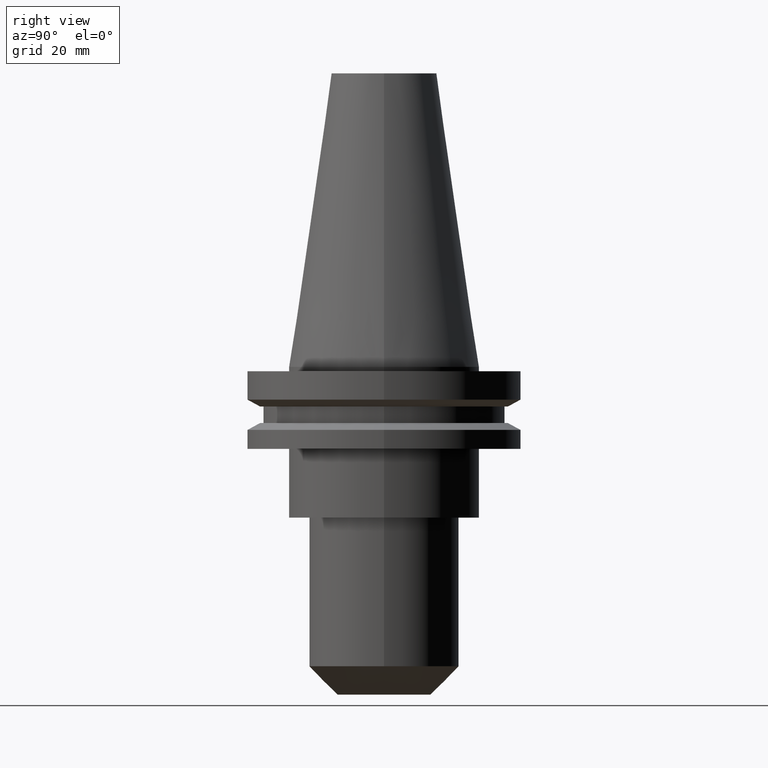
[diagram: clean part render]
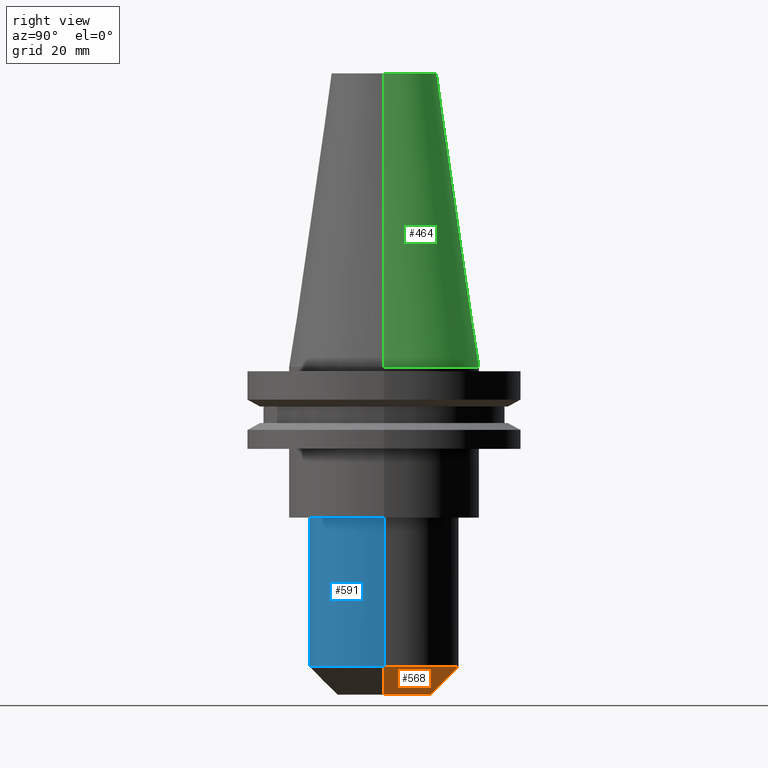
[diagram: same view with three faces highlighted in distinct colors, each labeled with its STEP entity id]
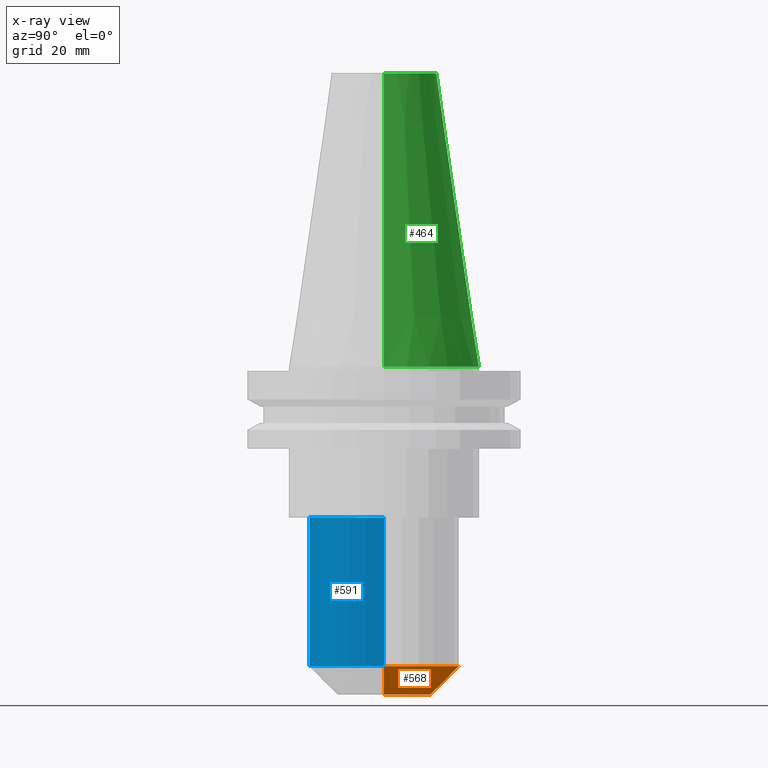
[diagram: x-ray of the same camera — body ghosted, the three highlighted faces saturated]
A machine part, right view with three faces highlighted in distinct colors.
The next image is the same camera in x-ray (body ghosted, the three faces saturated) — at least one of them is partly hidden behind the body in this view.
Their STEP definitions:

[orange] entity #568 — the highlighted conical surface has half-angle 45 deg.
#1 = CARTESIAN_POINT ( 'NONE',  ( 0.000000000000000000, 0.000000000000000000, -76.20000000000000284 ) ) ;
#21 = DIRECTION ( 'NONE',  ( 0.7071067811865487940, 0.000000000000000000, 0.7071067811865463515 ) ) ;
#85 = EDGE_CURVE ( 'NONE', #154, #462, #601, .T. ) ;
#115 = CARTESIAN_POINT ( 'NONE',  ( 0.000000000000000000, 0.000000000000000000, -69.60000000000000853 ) ) ;
#154 = VERTEX_POINT ( 'NONE', #635 ) ;
#171 = CARTESIAN_POINT ( 'NONE',  ( 10.86499999999998423, 0.000000000000000000, -76.20000000000000284 ) ) ;
#180 = DIRECTION ( 'NONE',  ( 1.000000000000000000, 0.000000000000000000, 0.000000000000000000 ) ) ;
#197 = DIRECTION ( 'NONE',  ( 1.000000000000000000, 0.000000000000000000, 0.000000000000000000 ) ) ;
#208 = EDGE_CURVE ( 'NONE', #363, #480, #746, .T. ) ;
#228 = ORIENTED_EDGE ( 'NONE', *, *, #292, .F. ) ;
#229 = AXIS2_PLACEMENT_3D ( 'NONE', #1, #267, #197 ) ;
#238 = DIRECTION ( 'NONE',  ( -0.000000000000000000, -0.000000000000000000, 1.000000000000000000 ) ) ;
#267 = DIRECTION ( 'NONE',  ( -0.000000000000000000, -0.000000000000000000, 1.000000000000000000 ) ) ;
#292 = EDGE_CURVE ( 'NONE', #480, #462, #384, .T. ) ;
#302 = ORIENTED_EDGE ( 'NONE', *, *, #85, .T. ) ;
#325 = EDGE_LOOP ( 'NONE', ( #803, #302, #228, #342 ) ) ;
#342 = ORIENTED_EDGE ( 'NONE', *, *, #208, .F. ) ;
#363 = VERTEX_POINT ( 'NONE', #171 ) ;
#384 = CIRCLE ( 'NONE', #612, 17.46499999999999986 ) ;
#461 = AXIS2_PLACEMENT_3D ( 'NONE', #584, #774, #180 ) ;
#462 = VERTEX_POINT ( 'NONE', #795 ) ;
#468 = FACE_OUTER_BOUND ( 'NONE', #325, .T. ) ;
#472 = VECTOR ( 'NONE', #793, 1000.000000000000000 ) ;
#480 = VERTEX_POINT ( 'NONE', #593 ) ;
#494 = CONICAL_SURFACE ( 'NONE', #229, 10.86499999999998423, 0.7853981633974500554 ) ;
#568 = ADVANCED_FACE ( 'NONE', ( #468 ), #494, .T. ) ;
#584 = CARTESIAN_POINT ( 'NONE',  ( 0.000000000000000000, 0.000000000000000000, -76.20000000000000284 ) ) ;
#593 = CARTESIAN_POINT ( 'NONE',  ( 17.46499999999999986, 0.000000000000000000, -69.60000000000000853 ) ) ;
#601 = LINE ( 'NONE', #606, #472 ) ;
#606 = CARTESIAN_POINT ( 'NONE',  ( -10.86499999999998423, 1.330578747273597361E-15, -76.20000000000000284 ) ) ;
#612 = AXIS2_PLACEMENT_3D ( 'NONE', #115, #238, #640 ) ;
#635 = CARTESIAN_POINT ( 'NONE',  ( -10.86499999999998423, 1.734712190992225046E-15, -76.20000000000000284 ) ) ;
#640 = DIRECTION ( 'NONE',  ( 1.000000000000000000, 0.000000000000000000, 0.000000000000000000 ) ) ;
#746 = LINE ( 'NONE', #823, #814 ) ;
#774 = DIRECTION ( 'NONE',  ( -0.000000000000000000, -0.000000000000000000, 1.000000000000000000 ) ) ;
#775 = CIRCLE ( 'NONE', #461, 10.86499999999998423 ) ;
#793 = DIRECTION ( 'NONE',  ( -0.7071067811865487940, 8.659560562354948882E-17, 0.7071067811865463515 ) ) ;
#795 = CARTESIAN_POINT ( 'NONE',  ( -17.46499999999999986, 2.138845634710852534E-15, -69.60000000000000853 ) ) ;
#803 = ORIENTED_EDGE ( 'NONE', *, *, #825, .T. ) ;
#814 = VECTOR ( 'NONE', #21, 1000.000000000000000 ) ;
#823 = CARTESIAN_POINT ( 'NONE',  ( 10.86499999999998423, 0.000000000000000000, -76.20000000000000284 ) ) ;
#825 = EDGE_CURVE ( 'NONE', #363, #154, #775, .T. ) ;

[blue] entity #591 — the highlighted cylindrical surface (partial cylindrical patch) has radius 17.465 mm, axis along (-0, -0, 1).
#87 = ORIENTED_EDGE ( 'NONE', *, *, #609, .T. ) ;
#93 = CARTESIAN_POINT ( 'NONE',  ( 17.46499999999999986, 0.000000000000000000, 0.000000000000000000 ) ) ;
#113 = ORIENTED_EDGE ( 'NONE', *, *, #608, .T. ) ;
#118 = CARTESIAN_POINT ( 'NONE',  ( 0.000000000000000000, 0.000000000000000000, -69.60000000000000853 ) ) ;
#146 = VECTOR ( 'NONE', #355, 1000.000000000000000 ) ;
#165 = CYLINDRICAL_SURFACE ( 'NONE', #685, 17.46499999999999986 ) ;
#213 = FACE_OUTER_BOUND ( 'NONE', #679, .T. ) ;
#230 = CARTESIAN_POINT ( 'NONE',  ( 0.000000000000000000, 0.000000000000000000, 0.000000000000000000 ) ) ;
#247 = DIRECTION ( 'NONE',  ( -0.000000000000000000, -0.000000000000000000, 1.000000000000000000 ) ) ;
#313 = CIRCLE ( 'NONE', #636, 17.46499999999999986 ) ;
#335 = CARTESIAN_POINT ( 'NONE',  ( 17.46499999999999986, 0.000000000000000000, -35.04999999999999716 ) ) ;
#352 = CARTESIAN_POINT ( 'NONE',  ( 0.000000000000000000, 0.000000000000000000, -35.04999999999999716 ) ) ;
#355 = DIRECTION ( 'NONE',  ( -0.000000000000000000, -0.000000000000000000, 1.000000000000000000 ) ) ;
#367 = VECTOR ( 'NONE', #611, 1000.000000000000000 ) ;
#386 = EDGE_CURVE ( 'NONE', #462, #480, #454, .T. ) ;
#426 = DIRECTION ( 'NONE',  ( 1.000000000000000000, 0.000000000000000000, 0.000000000000000000 ) ) ;
#444 = ORIENTED_EDGE ( 'NONE', *, *, #607, .F. ) ;
#454 = CIRCLE ( 'NONE', #579, 17.46499999999999986 ) ;
#462 = VERTEX_POINT ( 'NONE', #795 ) ;
#480 = VERTEX_POINT ( 'NONE', #593 ) ;
#481 = DIRECTION ( 'NONE',  ( 0.000000000000000000, 0.000000000000000000, -1.000000000000000000 ) ) ;
#547 = DIRECTION ( 'NONE',  ( -0.000000000000000000, -0.000000000000000000, 1.000000000000000000 ) ) ;
#550 = LINE ( 'NONE', #93, #367 ) ;
#579 = AXIS2_PLACEMENT_3D ( 'NONE', #118, #247, #704 ) ;
#583 = VERTEX_POINT ( 'NONE', #335 ) ;
#591 = ADVANCED_FACE ( 'NONE', ( #213 ), #165, .T. ) ;
#593 = CARTESIAN_POINT ( 'NONE',  ( 17.46499999999999986, 0.000000000000000000, -69.60000000000000853 ) ) ;
#607 = EDGE_CURVE ( 'NONE', #462, #698, #683, .T. ) ;
#608 = EDGE_CURVE ( 'NONE', #583, #698, #313, .T. ) ;
#609 = EDGE_CURVE ( 'NONE', #480, #583, #550, .T. ) ;
#611 = DIRECTION ( 'NONE',  ( -0.000000000000000000, -0.000000000000000000, 1.000000000000000000 ) ) ;
#636 = AXIS2_PLACEMENT_3D ( 'NONE', #352, #481, #822 ) ;
#679 = EDGE_LOOP ( 'NONE', ( #444, #729, #87, #113 ) ) ;
#683 = LINE ( 'NONE', #808, #146 ) ;
#685 = AXIS2_PLACEMENT_3D ( 'NONE', #230, #547, #426 ) ;
#698 = VERTEX_POINT ( 'NONE', #819 ) ;
#704 = DIRECTION ( 'NONE',  ( 1.000000000000000000, 0.000000000000000000, 0.000000000000000000 ) ) ;
#729 = ORIENTED_EDGE ( 'NONE', *, *, #386, .T. ) ;
#795 = CARTESIAN_POINT ( 'NONE',  ( -17.46499999999999986, 2.138845634710852534E-15, -69.60000000000000853 ) ) ;
#808 = CARTESIAN_POINT ( 'NONE',  ( -17.46499999999999986, 2.138845634710852534E-15, 0.000000000000000000 ) ) ;
#819 = CARTESIAN_POINT ( 'NONE',  ( -17.46499999999999986, 2.138845634710852534E-15, -35.04999999999999716 ) ) ;
#822 = DIRECTION ( 'NONE',  ( 1.000000000000000000, 0.000000000000000000, 0.000000000000000000 ) ) ;

[green] entity #464 — the highlighted conical surface has half-angle 8.297 deg.
#2 = AXIS2_PLACEMENT_3D ( 'NONE', #677, #486, #147 ) ;
#10 = DIRECTION ( 'NONE',  ( -0.000000000000000000, -0.000000000000000000, 1.000000000000000000 ) ) ;
#22 = VERTEX_POINT ( 'NONE', #331 ) ;
#63 = ORIENTED_EDGE ( 'NONE', *, *, #766, .F. ) ;
#68 = FACE_OUTER_BOUND ( 'NONE', #553, .T. ) ;
#138 = DIRECTION ( 'NONE',  ( 0.000000000000000000, 0.000000000000000000, -1.000000000000000000 ) ) ;
#147 = DIRECTION ( 'NONE',  ( 1.000000000000000000, 0.000000000000000000, 0.000000000000000000 ) ) ;
#194 = DIRECTION ( 'NONE',  ( 0.1443082272672999711, 1.767266086135276757E-17, -0.9895327864921755756 ) ) ;
#209 = CARTESIAN_POINT ( 'NONE',  ( -22.22500000000000142, 0.000000000000000000, 0.000000000000000000 ) ) ;
#222 = VECTOR ( 'NONE', #512, 999.9999999999998863 ) ;
#273 = AXIS2_PLACEMENT_3D ( 'NONE', #736, #138, #786 ) ;
#276 = CARTESIAN_POINT ( 'NONE',  ( 0.000000000000000000, 0.000000000000000000, 68.25000000000000000 ) ) ;
#281 = CARTESIAN_POINT ( 'NONE',  ( 12.27178102086201150, 2.112318622904291439E-15, 68.25000000000000000 ) ) ;
#303 = CIRCLE ( 'NONE', #413, 12.27178102086201150 ) ;
#329 = VECTOR ( 'NONE', #194, 999.9999999999998863 ) ;
#331 = CARTESIAN_POINT ( 'NONE',  ( -12.27178102086201150, 0.000000000000000000, 68.25000000000000000 ) ) ;
#395 = CARTESIAN_POINT ( 'NONE',  ( 22.22500000000000142, 2.721777511104992849E-15, 0.000000000000000000 ) ) ;
#413 = AXIS2_PLACEMENT_3D ( 'NONE', #276, #10, #541 ) ;
#438 = CARTESIAN_POINT ( 'NONE',  ( -22.22500000000000142, 0.000000000000000000, 0.000000000000000000 ) ) ;
#440 = VERTEX_POINT ( 'NONE', #209 ) ;
#464 = ADVANCED_FACE ( 'NONE', ( #68 ), #848, .T. ) ;
#486 = DIRECTION ( 'NONE',  ( -0.000000000000000000, -0.000000000000000000, 1.000000000000000000 ) ) ;
#495 = EDGE_CURVE ( 'NONE', #657, #505, #531, .T. ) ;
#496 = ORIENTED_EDGE ( 'NONE', *, *, #495, .T. ) ;
#505 = VERTEX_POINT ( 'NONE', #395 ) ;
#512 = DIRECTION ( 'NONE',  ( -0.1443082272672999711, 0.000000000000000000, -0.9895327864921755756 ) ) ;
#531 = LINE ( 'NONE', #658, #329 ) ;
#541 = DIRECTION ( 'NONE',  ( 1.000000000000000000, 0.000000000000000000, 0.000000000000000000 ) ) ;
#553 = EDGE_LOOP ( 'NONE', ( #739, #496, #682, #63 ) ) ;
#560 = EDGE_CURVE ( 'NONE', #657, #22, #303, .T. ) ;
#580 = LINE ( 'NONE', #438, #222 ) ;
#632 = EDGE_CURVE ( 'NONE', #505, #440, #817, .T. ) ;
#657 = VERTEX_POINT ( 'NONE', #281 ) ;
#658 = CARTESIAN_POINT ( 'NONE',  ( 22.22500000000000142, 2.721777511104992849E-15, 0.000000000000000000 ) ) ;
#677 = CARTESIAN_POINT ( 'NONE',  ( 0.000000000000000000, 0.000000000000000000, 0.000000000000000000 ) ) ;
#682 = ORIENTED_EDGE ( 'NONE', *, *, #632, .T. ) ;
#736 = CARTESIAN_POINT ( 'NONE',  ( 0.000000000000000000, 0.000000000000000000, 0.000000000000000000 ) ) ;
#739 = ORIENTED_EDGE ( 'NONE', *, *, #560, .F. ) ;
#766 = EDGE_CURVE ( 'NONE', #22, #440, #580, .T. ) ;
#786 = DIRECTION ( 'NONE',  ( -1.000000000000000000, 0.000000000000000000, 0.000000000000000000 ) ) ;
#817 = CIRCLE ( 'NONE', #2, 22.22500000000000142 ) ;
#848 = CONICAL_SURFACE ( 'NONE', #273, 22.22500000000000142, 0.1448138465474119174 ) ;